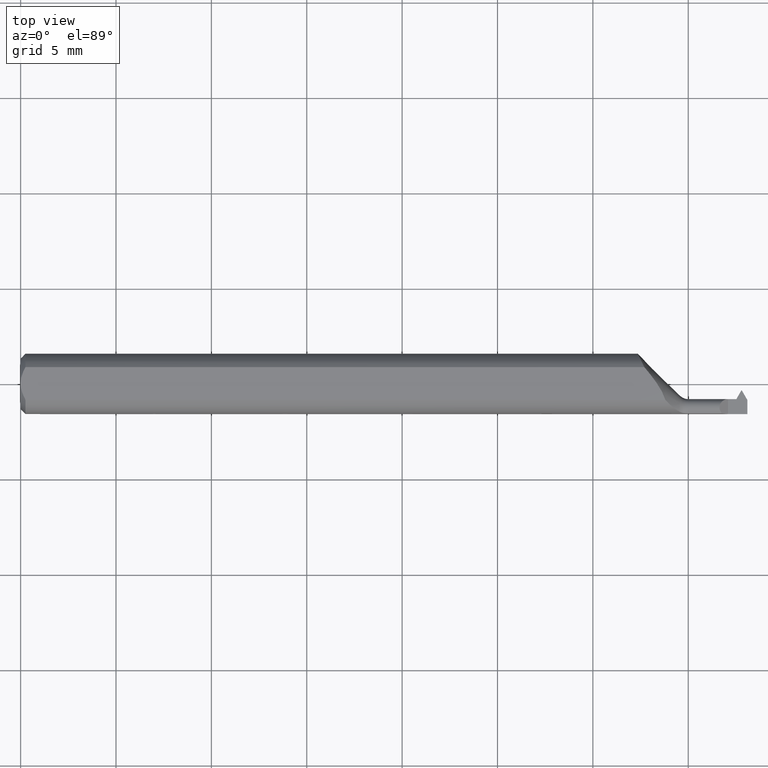
[diagram: clean part render]
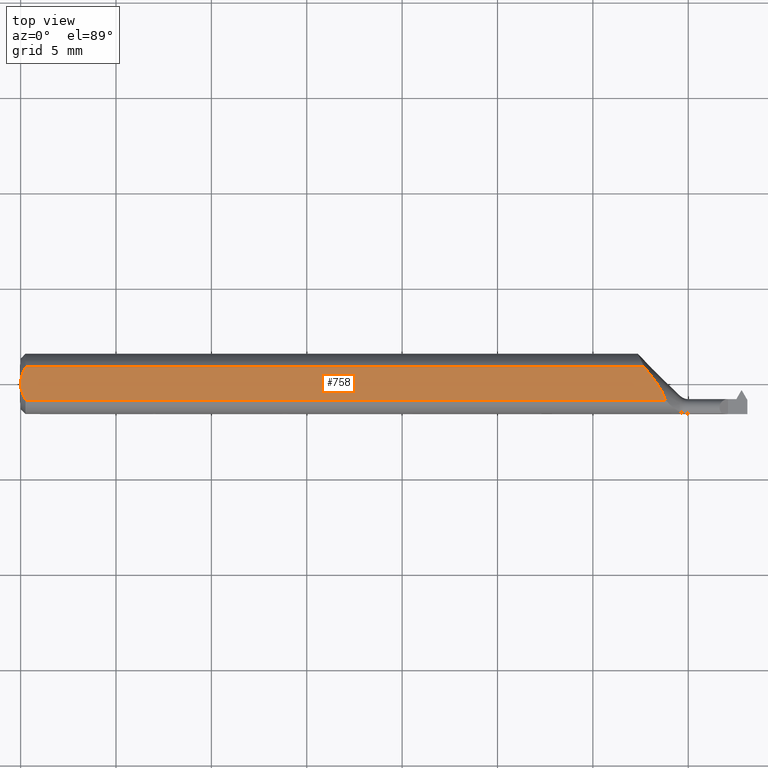
[diagram: same view with one face highlighted and labeled with its STEP entity id]
A machine part, top view. The second image highlights one B-rep face of the part: STEP entity #758.
In plain terms, the highlighted planar face has unit normal (0, 0, 1).
Its self-contained STEP definition (entity closure, byte-faithful):
#4 = AXIS2_PLACEMENT_3D ( 'NONE', #243, #623, #494 ) ;
#16 = CARTESIAN_POINT ( 'NONE',  ( 1.287253451677763394, 0.03386738844375224849, 0.05234999999999997294 ) ) ;
#26 = B_SPLINE_CURVE_WITH_KNOTS ( 'NONE', 3,
 ( #314, #686, #187, #194, #118, #498, #742, #16 ),
 .UNSPECIFIED., .F., .F.,
 ( 4, 2, 2, 4 ),
 ( 0.001782749369705200187, 0.002291746602842736555, 0.002800743835980272489, 0.003818738302255333516 ),
 .UNSPECIFIED. ) ;
#30 = CARTESIAN_POINT ( 'NONE',  ( -1.133440131013889109E-15, 0.005954997531774002505, 0.05234999999999997294 ) ) ;
#33 = VECTOR ( 'NONE', #242, 39.37007874015748143 ) ;
#40 = B_SPLINE_CURVE_WITH_KNOTS ( 'NONE', 3,
 ( #552, #353, #606, #50, #290, #226 ),
 .UNSPECIFIED., .F., .F.,
 ( 4, 2, 4 ),
 ( 0.002189598257423874383, 0.002641492532680540361, 0.003093386807937206339 ),
 .UNSPECIFIED. ) ;
#50 = CARTESIAN_POINT ( 'NONE',  ( 0.001055043921632921322, -0.01186408073210964975, 0.05234999999999997988 ) ) ;
#57 = ORIENTED_EDGE ( 'NONE', *, *, #443, .F. ) ;
#61 = FACE_OUTER_BOUND ( 'NONE', #186, .T. ) ;
#83 = CARTESIAN_POINT ( 'NONE',  ( 0.004671770759546750584, 0.02323517832780109052, 0.05234999999999998682 ) ) ;
#84 = CARTESIAN_POINT ( 'NONE',  ( 1.287253451677763394, 0.03386738844375224849, 0.05234999999999997294 ) ) ;
#92 = EDGE_CURVE ( 'NONE', #472, #298, #237, .T. ) ;
#118 = CARTESIAN_POINT ( 'NONE',  ( 1.315940729725910252, -0.003415696435723368160, 0.05234999999999997294 ) ) ;
#186 = EDGE_LOOP ( 'NONE', ( #485, #396, #778, #57, #461 ) ) ;
#187 = CARTESIAN_POINT ( 'NONE',  ( 1.326064074130062664, -0.02100907905298101536, 0.05234999999999997294 ) ) ;
#194 = CARTESIAN_POINT ( 'NONE',  ( 1.319590123793896064, -0.009075655482202656457, 0.05235000000000000070 ) ) ;
#212 = CARTESIAN_POINT ( 'NONE',  ( 0.009999999999999887451, 0.03386738844375224849, 0.05234999999999997294 ) ) ;
#226 = CARTESIAN_POINT ( 'NONE',  ( 0.000000000000000000, 0.000000000000000000, 0.05234999999999997294 ) ) ;
#237 = LINE ( 'NONE', #488, #33 ) ;
#242 = DIRECTION ( 'NONE',  ( 1.000000000000000000, 0.000000000000000000, 0.000000000000000000 ) ) ;
#243 = CARTESIAN_POINT ( 'NONE',  ( 1.630958352158234037, 0.06235000000000000264, 0.05234999999999997294 ) ) ;
#265 = CARTESIAN_POINT ( 'NONE',  ( 0.007185421074056196067, 0.02868573718286566293, 0.05234999999999997294 ) ) ;
#290 = CARTESIAN_POINT ( 'NONE',  ( -1.104610997828796865E-15, -0.005965286321680308458, 0.05234999999999996600 ) ) ;
#298 = VERTEX_POINT ( 'NONE', #365 ) ;
#314 = CARTESIAN_POINT ( 'NONE',  ( 1.330692836829395986, -0.03386738844375224849, 0.05234999999999997294 ) ) ;
#316 = EDGE_CURVE ( 'NONE', #602, #741, #630, .T. ) ;
#317 = DIRECTION ( 'NONE',  ( -1.000000000000000000, -0.000000000000000000, -0.000000000000000000 ) ) ;
#325 = CARTESIAN_POINT ( 'NONE',  ( 0.000000000000000000, 0.000000000000000000, 0.05234999999999997294 ) ) ;
#346 = CARTESIAN_POINT ( 'NONE',  ( 0.001063697276021325104, 0.01189177144351695990, 0.05234999999999997988 ) ) ;
#353 = CARTESIAN_POINT ( 'NONE',  ( 0.007163450771350382031, -0.02864528976618618133, 0.05234999999999997294 ) ) ;
#365 = CARTESIAN_POINT ( 'NONE',  ( 1.330692836829395986, -0.03386738844375224849, 0.05234999999999997294 ) ) ;
#371 = PLANE ( 'NONE',  #4 ) ;
#396 = ORIENTED_EDGE ( 'NONE', *, *, #770, .T. ) ;
#439 = VERTEX_POINT ( 'NONE', #637 ) ;
#443 = EDGE_CURVE ( 'NONE', #439, #741, #600, .T. ) ;
#461 = ORIENTED_EDGE ( 'NONE', *, *, #646, .F. ) ;
#463 = CARTESIAN_POINT ( 'NONE',  ( 0.009999999999999887451, -0.03386738844375224849, 0.05234999999999997294 ) ) ;
#472 = VERTEX_POINT ( 'NONE', #463 ) ;
#485 = ORIENTED_EDGE ( 'NONE', *, *, #92, .T. ) ;
#488 = CARTESIAN_POINT ( 'NONE',  ( 0.000000000000000000, -0.03386738844375224849, 0.05234999999999997294 ) ) ;
#494 = DIRECTION ( 'NONE',  ( 1.000000000000000000, 0.000000000000000000, -0.000000000000000000 ) ) ;
#498 = CARTESIAN_POINT ( 'NONE',  ( 1.304403652722808893, 0.01312616709034402501, 0.05234999999999996600 ) ) ;
#552 = CARTESIAN_POINT ( 'NONE',  ( 0.009999999999999887451, -0.03386738844375224849, 0.05234999999999997294 ) ) ;
#600 = B_SPLINE_CURVE_WITH_KNOTS ( 'NONE', 3,
 ( #325, #30, #346, #83, #265, #212 ),
 .UNSPECIFIED., .F., .F.,
 ( 4, 2, 4 ),
 ( 0.003093386807937206339, 0.003544501666246027347, 0.003995616524554848788 ),
 .UNSPECIFIED. ) ;
#602 = VERTEX_POINT ( 'NONE', #84 ) ;
#606 = CARTESIAN_POINT ( 'NONE',  ( 0.004679365186780987812, -0.02325953974079660730, 0.05234999999999997988 ) ) ;
#623 = DIRECTION ( 'NONE',  ( 0.000000000000000000, 0.000000000000000000, 1.000000000000000000 ) ) ;
#625 = VECTOR ( 'NONE', #317, 39.37007874015748143 ) ;
#630 = LINE ( 'NONE', #687, #625 ) ;
#637 = CARTESIAN_POINT ( 'NONE',  ( 0.000000000000000000, 0.000000000000000000, 0.05234999999999997294 ) ) ;
#646 = EDGE_CURVE ( 'NONE', #472, #439, #40, .T. ) ;
#686 = CARTESIAN_POINT ( 'NONE',  ( 1.328887346580172490, -0.02730563269667976231, 0.05234999999999997988 ) ) ;
#687 = CARTESIAN_POINT ( 'NONE',  ( 0.000000000000000000, 0.03386738844375224849, 0.05234999999999997294 ) ) ;
#741 = VERTEX_POINT ( 'NONE', #750 ) ;
#742 = CARTESIAN_POINT ( 'NONE',  ( 1.295943991857031241, 0.02358264054126597148, 0.05234999999999997294 ) ) ;
#750 = CARTESIAN_POINT ( 'NONE',  ( 0.009999999999999887451, 0.03386738844375224849, 0.05234999999999997294 ) ) ;
#758 = ADVANCED_FACE ( 'NONE', ( #61 ), #371, .T. ) ;
#770 = EDGE_CURVE ( 'NONE', #298, #602, #26, .T. ) ;
#778 = ORIENTED_EDGE ( 'NONE', *, *, #316, .T. ) ;